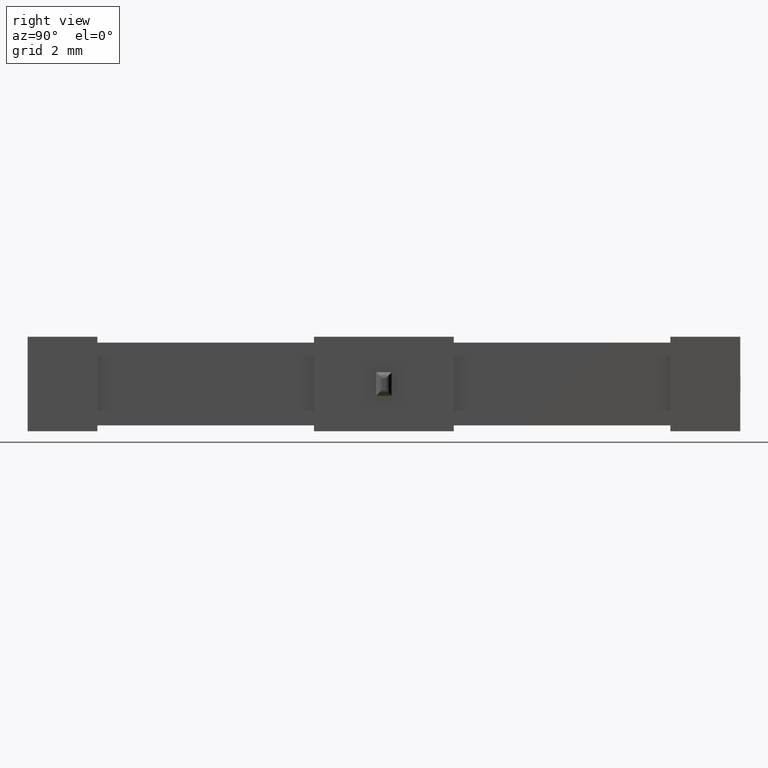
[diagram: clean part render]
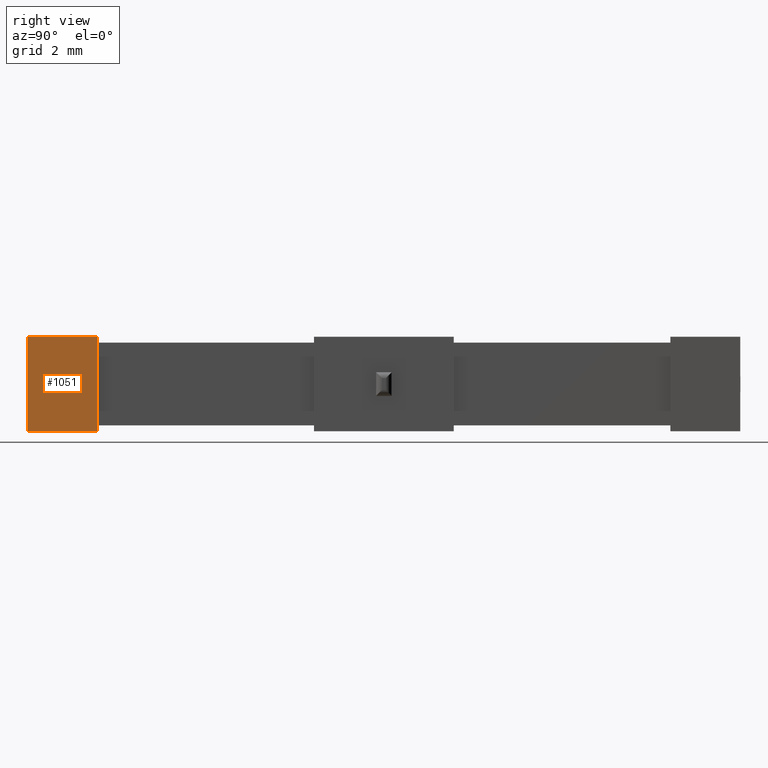
[diagram: same view with one face highlighted and labeled with its STEP entity id]
A machine part, right view. The second image highlights one B-rep face of the part: STEP entity #1051.
In plain terms, the highlighted planar face has unit normal (-1, 0, 0).
Its self-contained STEP definition (entity closure, byte-faithful):
#34 = PLANE ( 'NONE',  #1077 ) ;
#115 = ORIENTED_EDGE ( 'NONE', *, *, #2876, .T. ) ;
#278 = CARTESIAN_POINT ( 'NONE',  ( 3.099999999999998300, 1.773799999999999800, 0.0000000000000000000 ) ) ;
#301 = CARTESIAN_POINT ( 'NONE',  ( 3.099999999999998300, 1.773799999999999800, 2.399999999999999900 ) ) ;
#403 = LINE ( 'NONE', #3278, #2241 ) ;
#473 = CARTESIAN_POINT ( 'NONE',  ( 3.099999999999999600, 0.0000000000000000000, 2.399999999999999900 ) ) ;
#603 = EDGE_CURVE ( 'NONE', #3215, #1734, #3093, .T. ) ;
#646 = VECTOR ( 'NONE', #2659, 1000.000000000000000 ) ;
#686 = EDGE_CURVE ( 'NONE', #1734, #3336, #403, .T. ) ;
#739 = LINE ( 'NONE', #1847, #646 ) ;
#969 = CARTESIAN_POINT ( 'NONE',  ( 3.099999999999999600, 0.0000000000000000000, 2.399999999999999900 ) ) ;
#1051 = ADVANCED_FACE ( 'NONE', ( #2153 ), #34, .F. ) ;
#1077 = AXIS2_PLACEMENT_3D ( 'NONE', #2904, #1318, #1844 ) ;
#1231 = VERTEX_POINT ( 'NONE', #301 ) ;
#1318 = DIRECTION ( 'NONE',  ( -1.000000000000000000, 2.396026900520452100E-017, 0.0000000000000000000 ) ) ;
#1422 = ORIENTED_EDGE ( 'NONE', *, *, #603, .T. ) ;
#1557 = VECTOR ( 'NONE', #2545, 1000.000000000000000 ) ;
#1734 = VERTEX_POINT ( 'NONE', #2873 ) ;
#1746 = DIRECTION ( 'NONE',  ( 2.396026900520452100E-017, 1.000000000000000000, 0.0000000000000000000 ) ) ;
#1844 = DIRECTION ( 'NONE',  ( -2.396026900520452100E-017, -1.000000000000000000, 0.0000000000000000000 ) ) ;
#1847 = CARTESIAN_POINT ( 'NONE',  ( 3.099999999999998300, 1.773799999999999800, 2.250000000000000000 ) ) ;
#1906 = VECTOR ( 'NONE', #1746, 1000.000000000000000 ) ;
#1993 = CARTESIAN_POINT ( 'NONE',  ( 3.099999999999999600, 0.0000000000000000000, 2.399999999999999900 ) ) ;
#2153 = FACE_OUTER_BOUND ( 'NONE', #2692, .T. ) ;
#2241 = VECTOR ( 'NONE', #2245, 1000.000000000000000 ) ;
#2245 = DIRECTION ( 'NONE',  ( 2.396026900520452100E-017, 1.000000000000000000, 0.0000000000000000000 ) ) ;
#2334 = ORIENTED_EDGE ( 'NONE', *, *, #686, .T. ) ;
#2339 = ORIENTED_EDGE ( 'NONE', *, *, #3158, .F. ) ;
#2545 = DIRECTION ( 'NONE',  ( -0.0000000000000000000, -0.0000000000000000000, -1.000000000000000000 ) ) ;
#2659 = DIRECTION ( 'NONE',  ( -0.0000000000000000000, -0.0000000000000000000, 1.000000000000000000 ) ) ;
#2692 = EDGE_LOOP ( 'NONE', ( #2334, #115, #2339, #1422 ) ) ;
#2873 = CARTESIAN_POINT ( 'NONE',  ( 3.099999999999999600, 0.0000000000000000000, 0.0000000000000000000 ) ) ;
#2876 = EDGE_CURVE ( 'NONE', #3336, #1231, #739, .T. ) ;
#2904 = CARTESIAN_POINT ( 'NONE',  ( 3.099999999999999600, 0.0000000000000000000, 2.399999999999999900 ) ) ;
#3093 = LINE ( 'NONE', #1993, #1557 ) ;
#3158 = EDGE_CURVE ( 'NONE', #3215, #1231, #3323, .T. ) ;
#3215 = VERTEX_POINT ( 'NONE', #473 ) ;
#3278 = CARTESIAN_POINT ( 'NONE',  ( 3.099999999999999600, 0.0000000000000000000, 0.0000000000000000000 ) ) ;
#3323 = LINE ( 'NONE', #969, #1906 ) ;
#3336 = VERTEX_POINT ( 'NONE', #278 ) ;